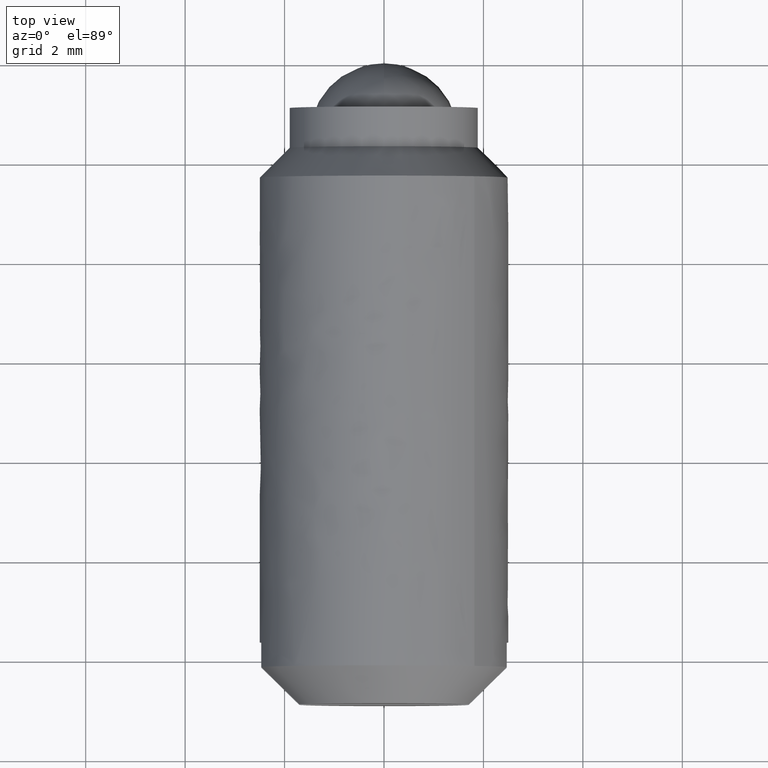
[diagram: clean part render]
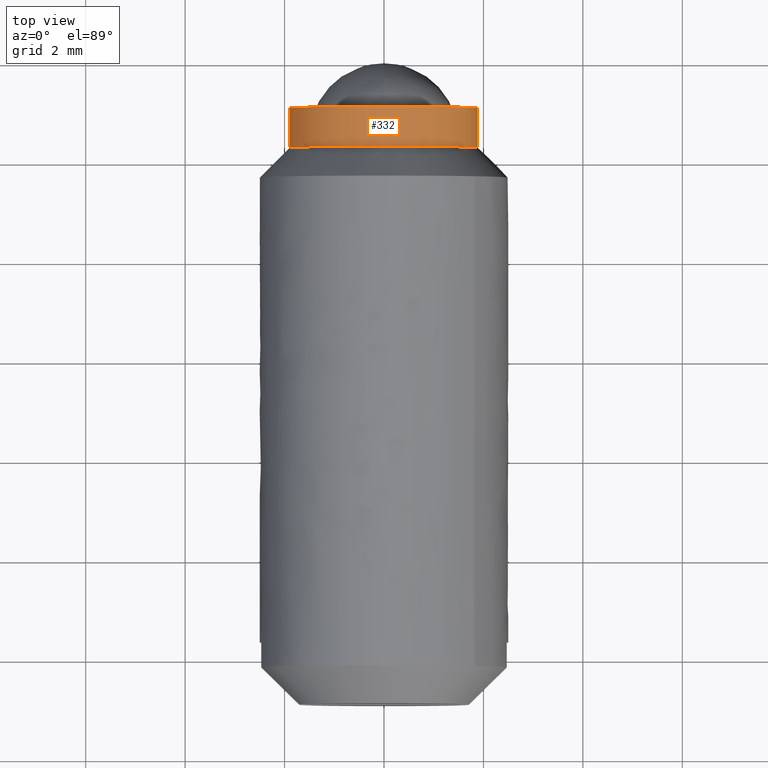
[diagram: same view with one face highlighted and labeled with its STEP entity id]
A machine part, top view. The second image highlights one B-rep face of the part: STEP entity #332.
In plain terms, the highlighted face is a freeform B-spline surface patch.
Its self-contained STEP definition (entity closure, byte-faithful):
#230=CARTESIAN_POINT('',(1.886718100090966,-0.880000000000000,-0.224265045847842));
#231=CARTESIAN_POINT('',(1.893136469352351,-0.880000000000000,-0.170267984412158));
#232=CARTESIAN_POINT('',(1.896456117001547,-0.880000000000000,-0.115992225116229));
#233=CARTESIAN_POINT('',(2.012448342117775,-0.880000000000000,1.780463891885318));
#234=CARTESIAN_POINT('',(0.115992225116228,-0.880000000000000,1.896456117001546));
#235=CARTESIAN_POINT('',(-1.780463891885319,-0.880000000000000,2.012448342117774));
#236=CARTESIAN_POINT('',(-1.896456117001547,-0.880000000000000,0.115992225116227));
#237=CARTESIAN_POINT('',(1.886718100090966,-1.720500000000000,-0.224265045847842));
#238=CARTESIAN_POINT('',(1.893136469352351,-1.720500000000001,-0.170267984412158));
#239=CARTESIAN_POINT('',(1.896456117001547,-1.720500000000000,-0.115992225116229));
#240=CARTESIAN_POINT('',(2.012448342117775,-1.720500000000000,1.780463891885318));
#241=CARTESIAN_POINT('',(0.115992225116228,-1.720500000000000,1.896456117001546));
#242=CARTESIAN_POINT('',(-1.780463891885319,-1.720500000000000,2.012448342117774));
#243=CARTESIAN_POINT('',(-1.896456117001547,-1.720500000000000,0.115992225116227));
#251=(BOUNDED_SURFACE()B_SPLINE_SURFACE(2,1,((#230,#237),(#231,#238),(#232,#239),(#233,#240),(#234,#241),(#235,#242),(#236,#243)),.UNSPECIFIED.,.F.,.F.,.U.)B_SPLINE_SURFACE_WITH_KNOTS((3,2,2,3),(2,2),(0.0,0.125920922961421,3.273943996996943,6.421967071032465),(0.0,1.0),.UNSPECIFIED.)GEOMETRIC_REPRESENTATION_ITEM()RATIONAL_B_SPLINE_SURFACE(((0.977505800795127,0.977505800795127),(0.988284271247462,0.988284271247462),(1.0,1.0),(0.707106781186548,0.707106781186548),(1.0,1.0),(0.707106781186548,0.707106781186548),(1.0,1.0)))REPRESENTATION_ITEM('')SURFACE());
#252=CARTESIAN_POINT('',(1.886718476477220,-0.899999999999935,-0.224261879304770));
#253=VERTEX_POINT('',#252);
#254=CARTESIAN_POINT('',(0.0,-0.900000000000000,1.899999999999999));
#255=VERTEX_POINT('',#254);
#256=CARTESIAN_POINT('',(1.886718476477220,-0.899999999999935,-0.224261879304770));
#257=CARTESIAN_POINT('',(1.900000000000000,-0.900000000000000,-0.112524227329348));
#258=CARTESIAN_POINT('',(1.900000000000000,-0.900000000000000,-8.511014E-016));
#259=CARTESIAN_POINT('',(1.900000000000000,-0.900000000000000,1.899999999999998));
#260=CARTESIAN_POINT('',(0.0,-0.900000000000000,1.899999999999999));
#268=(BOUNDED_CURVE()B_SPLINE_CURVE(2,(#256,#257,#258,#259,#260),.UNSPECIFIED.,.F.,.U.)B_SPLINE_CURVE_WITH_KNOTS((3,2,3),(0.229562757159565,0.250000000000000,0.500000000000000),.UNSPECIFIED.)CURVE()GEOMETRIC_REPRESENTATION_ITEM()RATIONAL_B_SPLINE_CURVE((0.956027310142333,0.976056280643172,1.0,0.707106781186547,1.0))REPRESENTATION_ITEM(''));
#269=EDGE_CURVE('',#253,#255,#268,.T.);
#270=ORIENTED_EDGE('',*,*,#269,.T.);
#271=CARTESIAN_POINT('',(-1.896456117001057,-0.900000000000000,0.115992225124233));
#272=VERTEX_POINT('',#271);
#273=CARTESIAN_POINT('',(0.0,-0.900000000000000,1.899999999999999));
#274=CARTESIAN_POINT('',(-1.787341527105691,-0.900000000000000,1.899999999999999));
#275=CARTESIAN_POINT('',(-1.896456117001057,-0.900000000000000,0.115992225124233));
#283=(BOUNDED_CURVE()B_SPLINE_CURVE(2,(#273,#274,#275),.UNSPECIFIED.,.F.,.U.)B_SPLINE_CURVE_WITH_KNOTS((3,3),(0.500000000000000,0.739332962240510),.UNSPECIFIED.)CURVE()GEOMETRIC_REPRESENTATION_ITEM()RATIONAL_B_SPLINE_CURVE((1.0,0.719603993284874,0.976072041670077))REPRESENTATION_ITEM(''));
#284=EDGE_CURVE('',#255,#272,#283,.T.);
#285=ORIENTED_EDGE('',*,*,#284,.T.);
#286=CARTESIAN_POINT('',(-1.896456117002499,-1.700000000003540,0.115992225129656));
#287=VERTEX_POINT('',#286);
#288=CARTESIAN_POINT('',(-1.896456117001057,-0.900000000000000,0.115992225124233));
#289=CARTESIAN_POINT('',(-1.896456117002499,-1.700000000003540,0.115992225129656));
#290=QUASI_UNIFORM_CURVE('',1,(#288,#289),.UNSPECIFIED.,.F.,.U.);
#291=EDGE_CURVE('',#272,#287,#290,.T.);
#292=ORIENTED_EDGE('',*,*,#291,.T.);
#293=CARTESIAN_POINT('',(0.0,-1.700000000000000,1.899999999999999));
#294=VERTEX_POINT('',#293);
#295=CARTESIAN_POINT('',(0.0,-1.700000000000000,1.899999999999999));
#296=CARTESIAN_POINT('',(-1.787341527070503,-1.700000000000000,1.899999999999998));
#297=CARTESIAN_POINT('',(-1.896456117002499,-1.700000000003540,0.115992225129656));
#305=(BOUNDED_CURVE()B_SPLINE_CURVE(2,(#295,#296,#297),.UNSPECIFIED.,.F.,.U.)B_SPLINE_CURVE_WITH_KNOTS((3,3),(0.500000000000000,0.739332962237120),.UNSPECIFIED.)CURVE()GEOMETRIC_REPRESENTATION_ITEM()RATIONAL_B_SPLINE_CURVE((1.0,0.719603993288846,0.976072041662811))REPRESENTATION_ITEM(''));
#306=EDGE_CURVE('',#294,#287,#305,.T.);
#307=ORIENTED_EDGE('',*,*,#306,.F.);
#308=CARTESIAN_POINT('',(1.886718471939577,-1.700000000000000,-0.224261917480567));
#309=VERTEX_POINT('',#308);
#310=CARTESIAN_POINT('',(1.886718471939578,-1.700000000000000,-0.224261917480567));
#311=CARTESIAN_POINT('',(1.900000000000000,-1.700000000000000,-0.112524246619032));
#312=CARTESIAN_POINT('',(1.900000000000000,-1.700000000000000,-8.511014E-016));
#313=CARTESIAN_POINT('',(1.900000000000000,-1.700000000000001,1.899999999999998));
#314=CARTESIAN_POINT('',(0.0,-1.700000000000000,1.899999999999999));
#322=(BOUNDED_CURVE()B_SPLINE_CURVE(2,(#310,#311,#312,#313,#314),.UNSPECIFIED.,.F.,.U.)B_SPLINE_CURVE_WITH_KNOTS((3,2,3),(0.229562753739958,0.250000000000000,0.500000000000000),.UNSPECIFIED.)CURVE()GEOMETRIC_REPRESENTATION_ITEM()RATIONAL_B_SPLINE_CURVE((0.956027303439745,0.976056276636852,1.0,0.707106781186547,1.0))REPRESENTATION_ITEM(''));
#323=EDGE_CURVE('',#309,#294,#322,.T.);
#324=ORIENTED_EDGE('',*,*,#323,.F.);
#325=CARTESIAN_POINT('',(1.886718476477220,-0.899999999999935,-0.224261879304770));
#326=CARTESIAN_POINT('',(1.886718471939577,-1.700000000000000,-0.224261917480567));
#327=QUASI_UNIFORM_CURVE('',1,(#325,#326),.UNSPECIFIED.,.F.,.U.);
#328=EDGE_CURVE('',#253,#309,#327,.T.);
#329=ORIENTED_EDGE('',*,*,#328,.F.);
#330=EDGE_LOOP('',(#270,#285,#292,#307,#324,#329));
#331=FACE_OUTER_BOUND('',#330,.T.);
#332=ADVANCED_FACE('',(#331),#251,.T.);